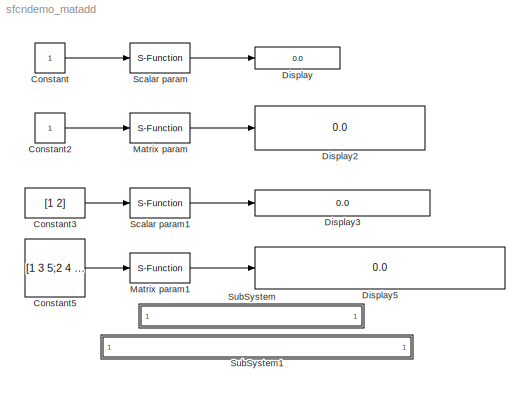
MODEL sfcndemo_matadd
KIND model
BLOCK [Constant] Constant
  VectorParams1D = off
BLOCK [Constant] Constant2
  VectorParams1D = off
BLOCK [Constant] Constant3
  Value = [1 2]
  VectorParams1D = off
BLOCK [Constant] Constant5
  Value = [1 3 5;2 4 6]
  VectorParams1D = off
BLOCK [Display] Display
  Decimation = 1
  Ports = [1]
BLOCK [Display] Display2
  Decimation = 1
  Ports = [1]
BLOCK [Display] Display3
  Decimation = 1
  Ports = [1]
BLOCK [Display] Display5
  Decimation = 1
  Ports = [1]
BLOCK [S-Function] Matrix param
  AttributesFormatString = Param = %<Operand>
  FunctionName = sfun_matadd
  MaskDisplay = disp('Matrix\\n Add ')\n
  MaskEnableString = on
  MaskIconFrame = on
  MaskIconOpaque = on
  MaskIconRotate = none
  MaskIconUnits = autoscale
  MaskPromptString = Operand 1:
  MaskStyleString = edit
  MaskToolTipString = on
  MaskTunableValueString = on
  MaskType = Matrix add
  MaskValueString = [1 3; 2 4]
  MaskVariables = Operand=@1;
  MaskVisibilityString = on
  Parameters = Operand
  Ports = [1, 1]
BLOCK [S-Function] Matrix param1
  AttributesFormatString = Param = %<Operand>
  FunctionName = sfun_matadd
  MaskDisplay = disp('Matrix\\n Add ')\n
  MaskEnableString = on
  MaskIconFrame = on
  MaskIconOpaque = on
  MaskIconRotate = none
  MaskIconUnits = autoscale
  MaskPromptString = Operand 1:
  MaskStyleString = edit
  MaskToolTipString = on
  MaskTunableValueString = on
  MaskType = Matrix add
  MaskValueString = [1 3 5;2 4 6]
  MaskVariables = Operand=@1;
  MaskVisibilityString = on
  Parameters = Operand
  Ports = [1, 1]
BLOCK [S-Function] Scalar param
  AttributesFormatString = Param = %<Operand>
  FunctionName = sfun_matadd
  MaskDisplay = disp('Matrix\\n Add ')\n
  MaskEnableString = on
  MaskIconFrame = on
  MaskIconOpaque = on
  MaskIconRotate = none
  MaskIconUnits = autoscale
  MaskPromptString = Operand 1:
  MaskStyleString = edit
  MaskToolTipString = on
  MaskTunableValueString = on
  MaskType = Matrix add
  MaskValueString = 1
  MaskVariables = Operand=@1;
  MaskVisibilityString = on
  Parameters = Operand
  Ports = [1, 1]
BLOCK [S-Function] Scalar param1
  AttributesFormatString = Param = %<Operand>
  FunctionName = sfun_matadd
  MaskDisplay = disp('Matrix\\n Add ')\n
  MaskEnableString = on
  MaskIconFrame = on
  MaskIconOpaque = on
  MaskIconRotate = none
  MaskIconUnits = autoscale
  MaskPromptString = Operand 1:
  MaskStyleString = edit
  MaskToolTipString = on
  MaskTunableValueString = on
  MaskType = Matrix add
  MaskValueString = 1
  MaskVariables = Operand=@1;
  MaskVisibilityString = on
  Parameters = Operand
  Ports = [1, 1]
BLOCK [SubSystem] SubSystem
  MaskDisplay = disp('matlabroot<path>');
  MaskIconFrame = on
  MaskIconOpaque = on
  MaskIconRotate = none
  MaskIconUnits = autoscale
  MinAlgLoopOccurrences = off
  OpenFcn = edit(fullfile(matlabroot,'simulink','src','sfun_matadd.c'))
  Ports = []
  PropExecContextAcrossSSBoundary = on
  RTWSystemCode = Auto
  TreatAsAtomicUnit = off
BLOCK [SubSystem] SubSystem1
  MaskDisplay = disp('matlabroot<path>');
  MaskIconFrame = on
  MaskIconOpaque = on
  MaskIconRotate = none
  MaskIconUnits = autoscale
  MinAlgLoopOccurrences = off
  OpenFcn = edit(fullfile(matlabroot,'toolbox','simulink','blocks','tlc_c','sfun_matadd.tlc'))
  Ports = []
  PropExecContextAcrossSSBoundary = on
  RTWSystemCode = Auto
  TreatAsAtomicUnit = off
LINE Constant2:1 -> Matrix param:1
LINE Constant3:1 -> Scalar param1:1
LINE Constant5:1 -> Matrix param1:1
LINE Constant:1 -> Scalar param:1
LINE Matrix param1:1 -> Display5:1
LINE Matrix param:1 -> Display2:1
LINE Scalar param1:1 -> Display3:1
LINE Scalar param:1 -> Display:1
note: 2 file-system paths scrubbed to <path> (not preserved elsewhere — flat text is the only slx artifact)
